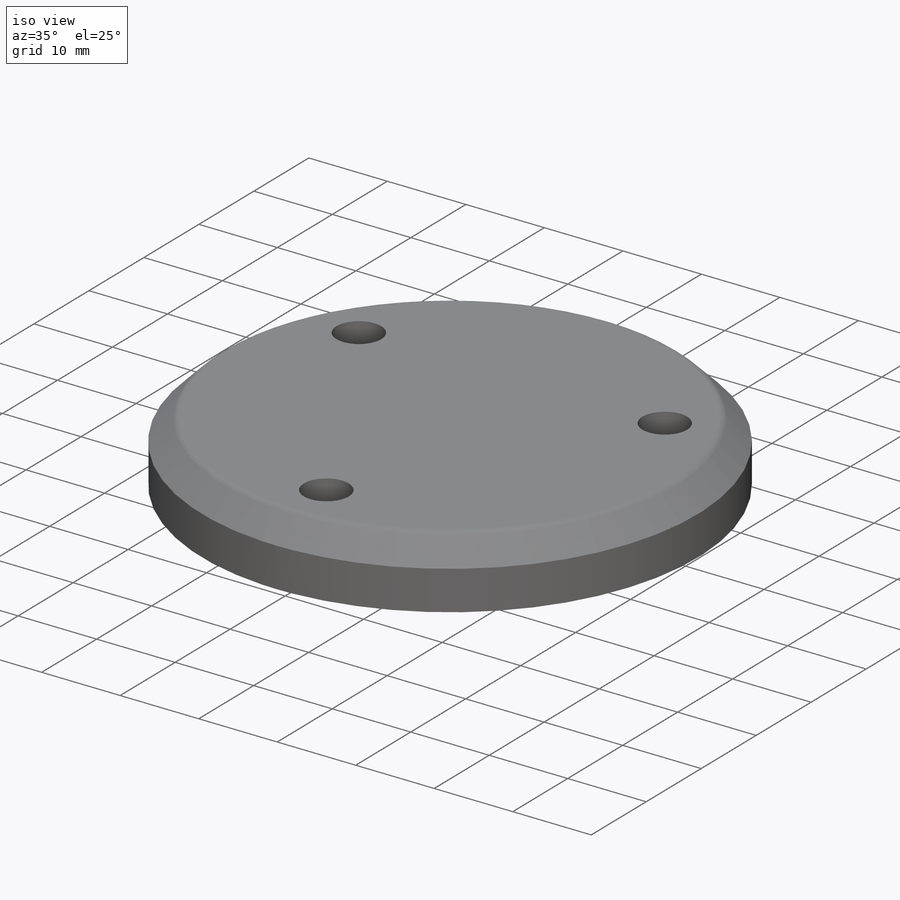
[diagram: iso view]
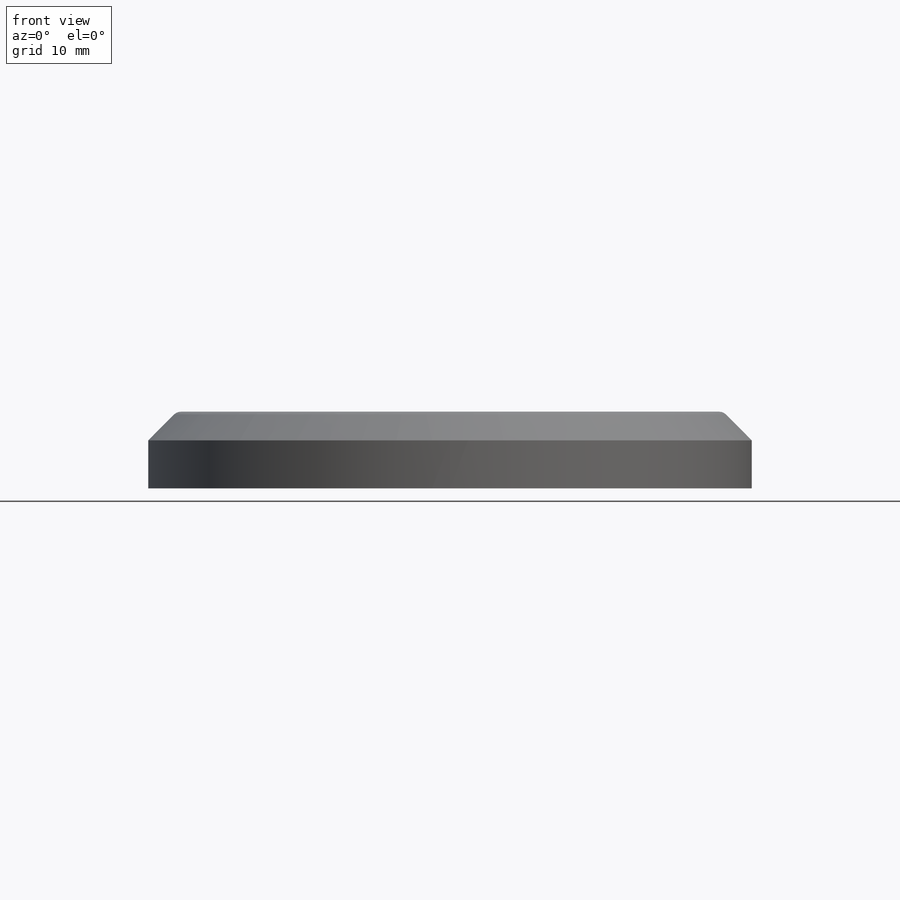
[diagram: front view]
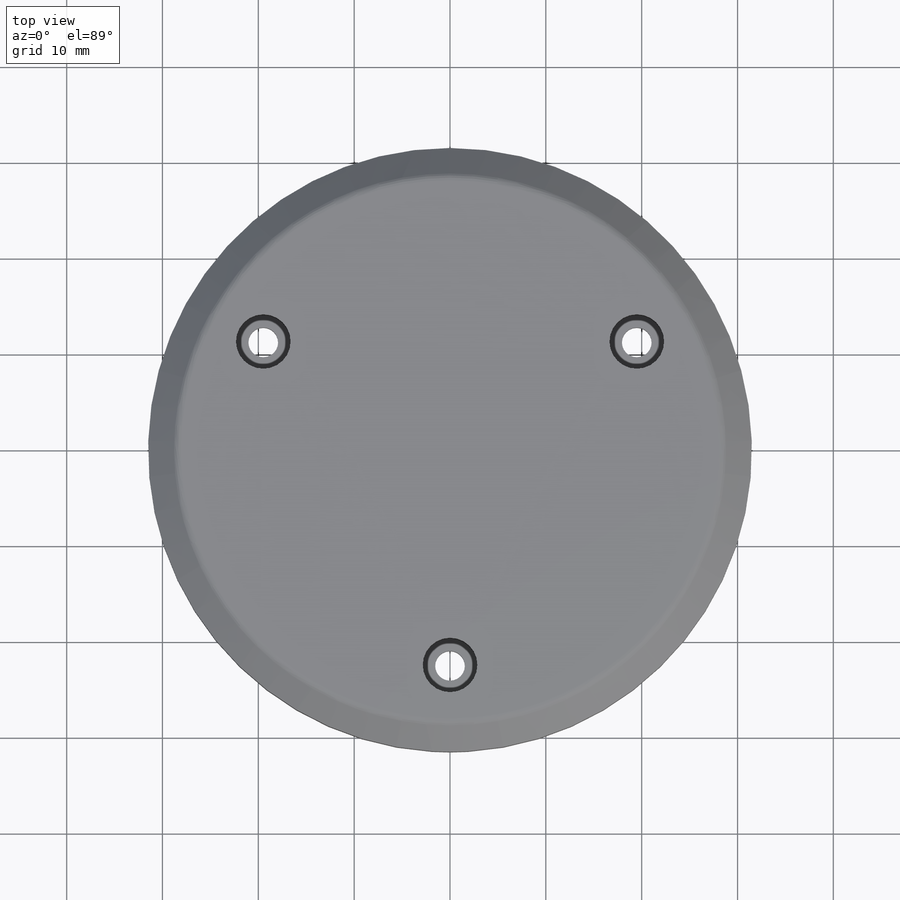
[diagram: top view]
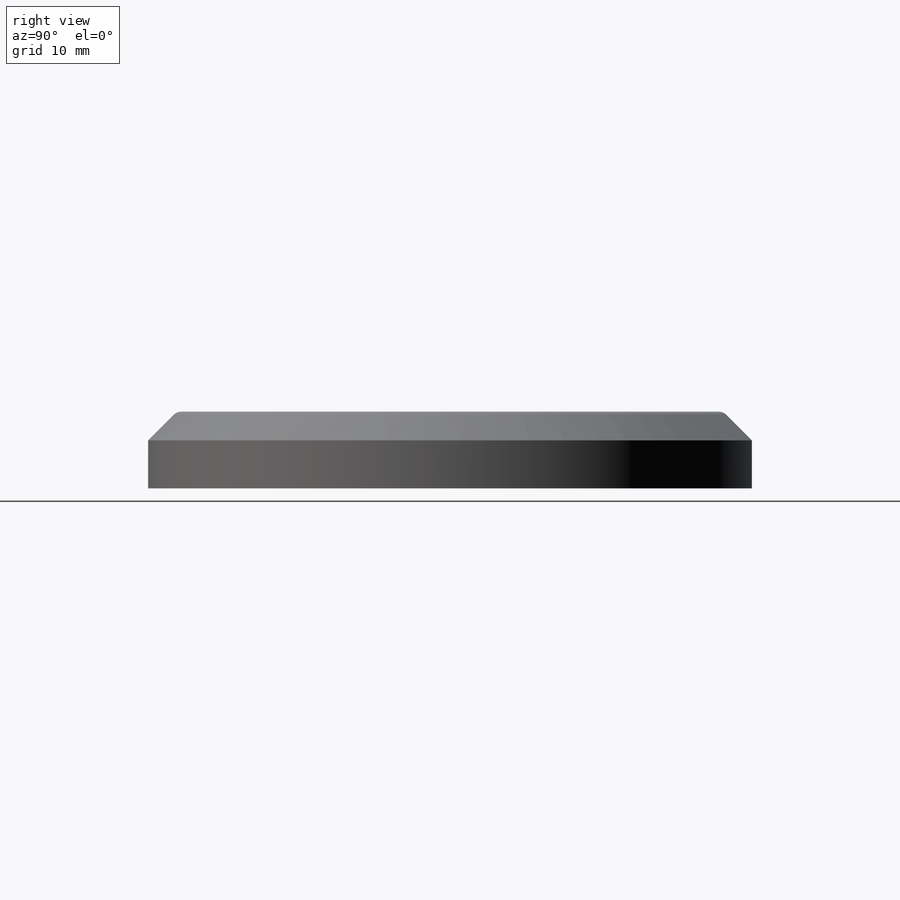
[diagram: right view]
SOLIDWORKS PART (.sldprt)
format: sldprt  version: not decoded by parser v0  size: 220,160 bytes
history: native  units: mm
features: plane x4, sketch x4, material x1, extrude x1, cut_extrude x1, chamfer x1, fillet x1 (+9 scaffold rows collapsed)
feature tree (22):
  scaffold x9  (default folders/planes/origin — collapsed)
  material  "Material <sin especificar>"
  plane  "Alzado"
  plane  "Planta"
  plane  "Vista lateral"
  sketch  "Croquis1"  dims[c1.D1=63.0mm c1.D5=3.1mm c1.D2=~23.553786mm c2.D2=45.0deg c2.D3=9.0mm c2.D4=9.0mm c3.D2=32.5mm c4.D2=120.0deg]
  extrude  "Saliente-Extruir1"  Depth=8mm
  sketch  "Croquis3"  dims[c1.D1=65.0mm c1.D5=5.7mm c1.D2=45.0deg c1.D3=10.0mm c1.D4=10.0mm c2.D2=32.5mm c3.D2=120.0deg]
  cut_extrude  "Cortar-Extruir1"  Depth=5mm
  sketch  "Croquis4"  dims[D1=30.0mm]
  sketch  "Croquis5"
  plane  "Plano1"
  chamfer  "Chaflán1"  Distance=3mm Angle=45deg
  fillet  "Redondeo1"  Radius=1mm
decode coverage: 7 of 8 modeling features carry decoded parameters
note: ~ marks probable driven/reference dimensions
note: suppression state not decoded; provenance and decode notes live in map.json
